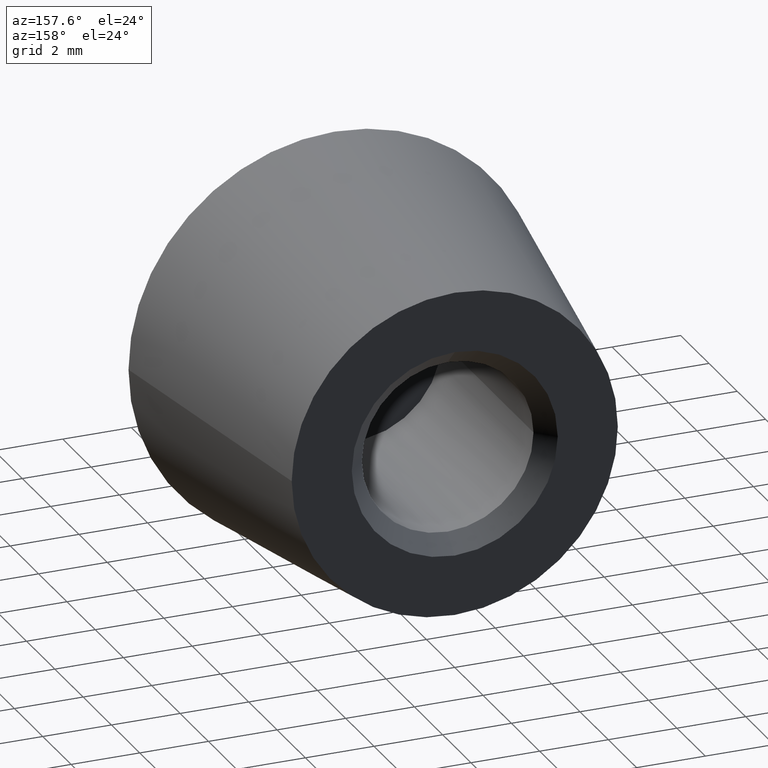
[diagram: clean part render]
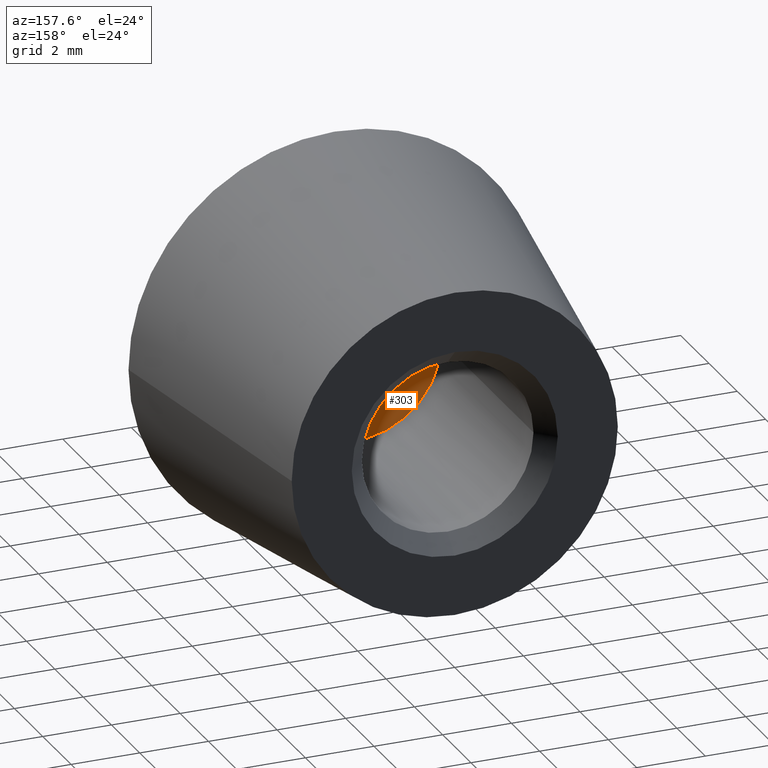
[diagram: same view with one face highlighted and labeled with its STEP entity id]
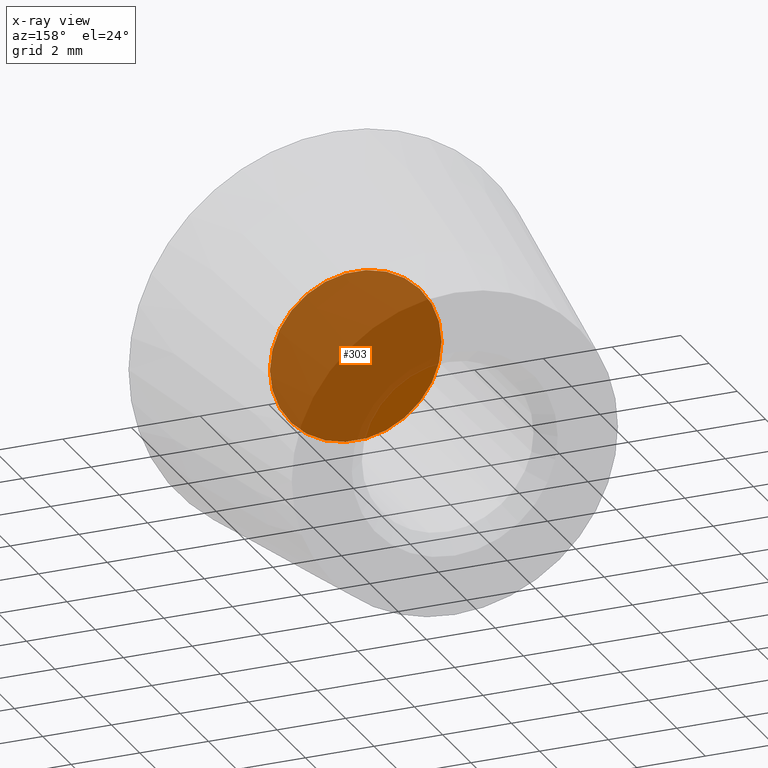
[diagram: x-ray of the same camera — body ghosted, the highlighted face saturated]
A machine part, auxiliary view. The second image highlights one B-rep face of the part: STEP entity #303.
The next image is the same camera in x-ray: the body ghosted, the highlighted face saturated — about 92% of this face is hidden behind the body in this view.
In plain terms, the highlighted planar face has unit normal (-0, 1, 0).
Its self-contained STEP definition (entity closure, byte-faithful):
#7 = ORIENTED_EDGE ( 'NONE', *, *, #313, .F. ) ;
#13 = DIRECTION ( 'NONE',  ( -1.000000000000000000, -3.469446951953613400E-015, 0.0000000000000000000 ) ) ;
#22 = DIRECTION ( 'NONE',  ( -3.491481338843133400E-015, 1.000000000000000000, 0.0000000000000000000 ) ) ;
#23 = VERTEX_POINT ( 'NONE', #74 ) ;
#51 = DIRECTION ( 'NONE',  ( 3.491481338843133400E-015, -1.000000000000000000, -0.0000000000000000000 ) ) ;
#71 = FACE_OUTER_BOUND ( 'NONE', #300, .T. ) ;
#73 = AXIS2_PLACEMENT_3D ( 'NONE', #183, #286, #13 ) ;
#74 = CARTESIAN_POINT ( 'NONE',  ( 2.500000000000024900, -6.999999999999991100, 3.061616997868396900E-016 ) ) ;
#81 = ORIENTED_EDGE ( 'NONE', *, *, #209, .F. ) ;
#150 = VERTEX_POINT ( 'NONE', #214 ) ;
#155 = CIRCLE ( 'NONE', #229, 2.500000000000000400 ) ;
#183 = CARTESIAN_POINT ( 'NONE',  ( 2.444036937190193300E-014, -7.000000000000000000, 0.0000000000000000000 ) ) ;
#191 = PLANE ( 'NONE',  #193 ) ;
#192 = DIRECTION ( 'NONE',  ( -1.000000000000000000, -3.491481338843133400E-015, 0.0000000000000000000 ) ) ;
#193 = AXIS2_PLACEMENT_3D ( 'NONE', #250, #22, #192 ) ;
#209 = EDGE_CURVE ( 'NONE', #23, #150, #284, .T. ) ;
#214 = CARTESIAN_POINT ( 'NONE',  ( -2.499999999999976000, -7.000000000000008900, 0.0000000000000000000 ) ) ;
#229 = AXIS2_PLACEMENT_3D ( 'NONE', #268, #51, #290 ) ;
#250 = CARTESIAN_POINT ( 'NONE',  ( 2.444036937190193300E-014, -7.000000000000000000, 0.0000000000000000000 ) ) ;
#268 = CARTESIAN_POINT ( 'NONE',  ( 2.444036937190193300E-014, -7.000000000000000000, 0.0000000000000000000 ) ) ;
#284 = CIRCLE ( 'NONE', #73, 2.500000000000000400 ) ;
#286 = DIRECTION ( 'NONE',  ( 3.491481338843133400E-015, -1.000000000000000000, -0.0000000000000000000 ) ) ;
#290 = DIRECTION ( 'NONE',  ( -1.000000000000000000, -3.469446951953613400E-015, 0.0000000000000000000 ) ) ;
#300 = EDGE_LOOP ( 'NONE', ( #7, #81 ) ) ;
#303 = ADVANCED_FACE ( 'NONE', ( #71 ), #191, .T. ) ;
#313 = EDGE_CURVE ( 'NONE', #150, #23, #155, .T. ) ;